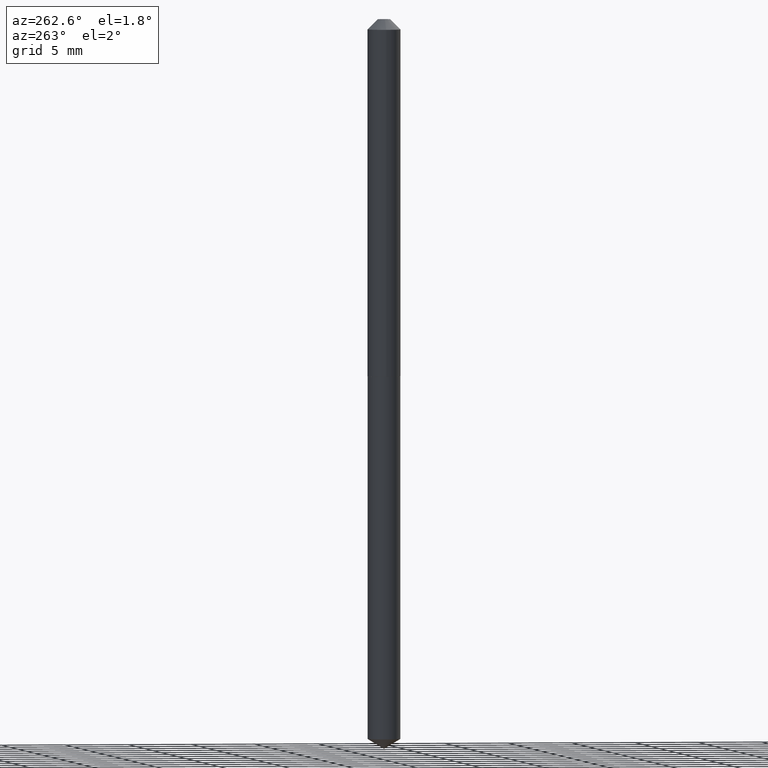
[diagram: clean part render]
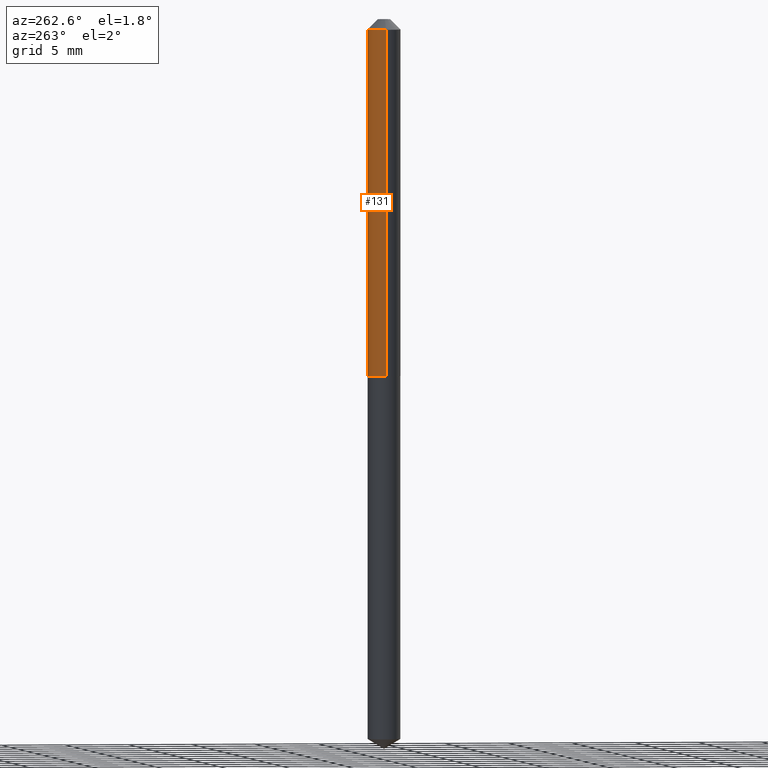
[diagram: same view with one face highlighted and labeled with its STEP entity id]
A machine part, auxiliary view. The second image highlights one B-rep face of the part: STEP entity #131.
In plain terms, the highlighted cylindrical surface (edge-blend (fillet) strip) has radius 1.2891 mm, axis along (-0, 0, 1).
Its self-contained STEP definition (entity closure, byte-faithful):
#5 = ORIENTED_EDGE ( 'NONE', *, *, #182, .F. ) ;
#9 = EDGE_CURVE ( 'NONE', #284, #291, #377, .T. ) ;
#27 = CARTESIAN_POINT ( 'NONE',  ( -0.05075000000000001732, -1.616014434554323559E-15, -0.03125000000000020123 ) ) ;
#36 = VECTOR ( 'NONE', #94, 39.37007874015748143 ) ;
#62 = DIRECTION ( 'NONE',  ( 1.000000000000000000, -6.982962677686265133E-15, 0.000000000000000000 ) ) ;
#63 = DIRECTION ( 'NONE',  ( 1.000000000000000000, -6.982962677686265922E-15, 4.876176775795935793E-29 ) ) ;
#70 = CARTESIAN_POINT ( 'NONE',  ( 0.05075000000000014222, -4.198506309958881744E-15, -1.100999999999999979 ) ) ;
#76 = VERTEX_POINT ( 'NONE', #27 ) ;
#77 = ORIENTED_EDGE ( 'NONE', *, *, #111, .T. ) ;
#94 = DIRECTION ( 'NONE',  ( -2.445468806185136877E-29, 3.491481338843145188E-15, 1.000000000000000000 ) ) ;
#101 = DIRECTION ( 'NONE',  ( -2.445468806185136597E-29, 3.491481338843145583E-15, 1.000000000000000000 ) ) ;
#111 = EDGE_CURVE ( 'NONE', #267, #76, #240, .T. ) ;
#124 = AXIS2_PLACEMENT_3D ( 'NONE', #298, #212, #62 ) ;
#128 = DIRECTION ( 'NONE',  ( -2.445468806185136597E-29, 3.491481338843145583E-15, 1.000000000000000000 ) ) ;
#131 = ADVANCED_FACE ( 'NONE', ( #270 ), #301, .T. ) ;
#148 = CARTESIAN_POINT ( 'NONE',  ( 0.05075000000000008671, -3.543853558925785858E-16, 2.474659713716441605E-30 ) ) ;
#180 = CARTESIAN_POINT ( 'NONE',  ( -0.05075000000000008671, 3.606004383982514604E-16, -2.496359558304368800E-30 ) ) ;
#182 = EDGE_CURVE ( 'NONE', #291, #76, #305, .T. ) ;
#197 = ORIENTED_EDGE ( 'NONE', *, *, #9, .F. ) ;
#212 = DIRECTION ( 'NONE',  ( -2.445468806185136597E-29, 3.491481338843145583E-15, 1.000000000000000000 ) ) ;
#240 = LINE ( 'NONE', #180, #36 ) ;
#251 = EDGE_LOOP ( 'NONE', ( #346, #77, #5, #197 ) ) ;
#266 = AXIS2_PLACEMENT_3D ( 'NONE', #325, #128, #63 ) ;
#267 = VERTEX_POINT ( 'NONE', #365 ) ;
#270 = FACE_OUTER_BOUND ( 'NONE', #251, .T. ) ;
#279 = DIRECTION ( 'NONE',  ( 1.000000000000000000, -6.982962677686270655E-15, 0.000000000000000000 ) ) ;
#282 = AXIS2_PLACEMENT_3D ( 'NONE', #307, #101, #279 ) ;
#284 = VERTEX_POINT ( 'NONE', #70 ) ;
#291 = VERTEX_POINT ( 'NONE', #331 ) ;
#298 = CARTESIAN_POINT ( 'NONE',  ( 7.642090019328601786E-31, -1.091087918388490144E-16, -0.03125000000000020123 ) ) ;
#301 = CYLINDRICAL_SURFACE ( 'NONE', #266, 0.05075000000000008671 ) ;
#305 = CIRCLE ( 'NONE', #124, 0.05075000000000001732 ) ;
#307 = CARTESIAN_POINT ( 'NONE',  ( 2.692461155609835411E-29, -3.844120954066303109E-15, -1.100999999999999979 ) ) ;
#316 = DIRECTION ( 'NONE',  ( -2.445468806185136877E-29, 3.491481338843145188E-15, 1.000000000000000000 ) ) ;
#325 = CARTESIAN_POINT ( 'NONE',  ( 0.000000000000000000, 0.000000000000000000, 0.000000000000000000 ) ) ;
#331 = CARTESIAN_POINT ( 'NONE',  ( 0.05075000000000001732, -4.634941477314271441E-16, -0.03125000000000020123 ) ) ;
#346 = ORIENTED_EDGE ( 'NONE', *, *, #387, .T. ) ;
#365 = CARTESIAN_POINT ( 'NONE',  ( -0.05075000000000014222, -3.483520515668050958E-15, -1.100999999999999979 ) ) ;
#377 = LINE ( 'NONE', #148, #380 ) ;
#380 = VECTOR ( 'NONE', #316, 39.37007874015748143 ) ;
#387 = EDGE_CURVE ( 'NONE', #284, #267, #390, .T. ) ;
#390 = CIRCLE ( 'NONE', #282, 0.05075000000000014222 ) ;